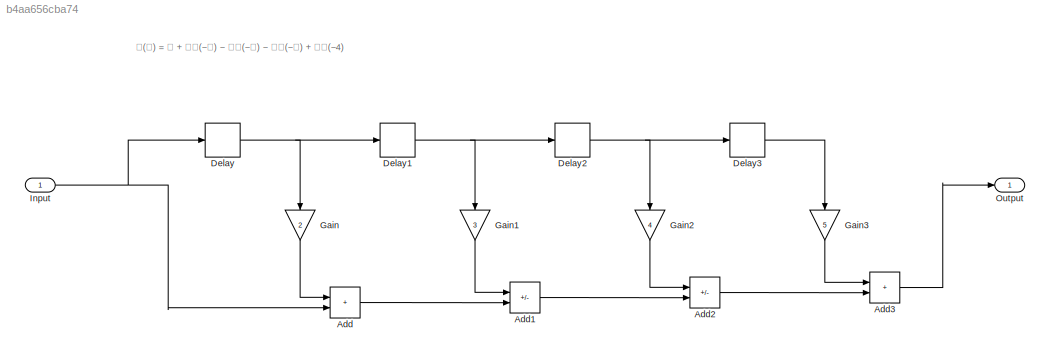
MODEL slx_b4aa656cba74
KIND model
CONFIG AbsTol = auto
CONFIG EnableMultiTasking = off
CONFIG FixedStep = auto
CONFIG MaxStep = auto
CONFIG MinStep = auto
CONFIG RelTol = 1e-3
CONFIG SampleTimeConstraint = Unconstrained
CONFIG SolverName = VariableStepAuto
CONFIG StartTime = 0.0
CONFIG StopTime = 10.0
BLOCK [Sum] Add
  IconShape = rectangular
  Ports = [2, 1]
BLOCK [Sum] Add1
  IconShape = rectangular
  Inputs = -+
  Ports = [2, 1]
BLOCK [Sum] Add2
  IconShape = rectangular
  Inputs = -+
  Ports = [2, 1]
BLOCK [Sum] Add3
  IconShape = rectangular
  Ports = [2, 1]
BLOCK [Delay] Delay
  DelayLength = 1
  InitialCondition = 0
  InputPortMap = u0
  Ports = [1, 1]
BLOCK [Delay] Delay1
  DelayLength = 1
  InputPortMap = u0
  Ports = [1, 1]
BLOCK [Delay] Delay2
  DelayLength = 1
  InputPortMap = u0
  Ports = [1, 1]
BLOCK [Delay] Delay3
  DelayLength = 1
  InputPortMap = u0
  Ports = [1, 1]
BLOCK [Gain] Gain
  Gain = 2
  NameLocation = left
BLOCK [Gain] Gain1
  Gain = 3
  NameLocation = left
BLOCK [Gain] Gain2
  Gain = 4
  NameLocation = left
BLOCK [Gain] Gain3
  Gain = 5
  NameLocation = left
BLOCK [Inport] Input
  OutDataTypeStr = double
  PortDimensions = 1
  SampleTime = [0,1]
  SamplingMode = Sample based
  SignalType = real
BLOCK [Outport] Output
  OutDataTypeStr = double
  PortDimensions = 1
  SampleTime = [0,1]
  SamplingMode = Sample based
  SignalType = real
ANNOTATION (root): 𝐇(𝐳) = 𝟏 + 𝟐𝐳(−𝟏) − 𝟑𝐳(−𝟐) − 𝟒𝐳(−𝟑) + 𝟓𝐳(−4)
LINE Add1:1 -> Add2:2
LINE Add2:1 -> Add3:2
LINE Add3:1 -> Output:1
LINE Add:1 -> Add1:2
NET Delay1:1 -> Delay2:1, Gain1:1
NET Delay2:1 -> Delay3:1, Gain2:1
LINE Delay3:1 -> Gain3:1
NET Delay:1 -> Delay1:1, Gain:1
LINE Gain1:1 -> Add1:1
LINE Gain2:1 -> Add2:1
LINE Gain3:1 -> Add3:1
LINE Gain:1 -> Add:1
NET Input:1 -> Add:2, Delay:1
note: NET lines group one-source signal fan-out (src -> all destinations, sorted); 1:1 wires keep LINE
